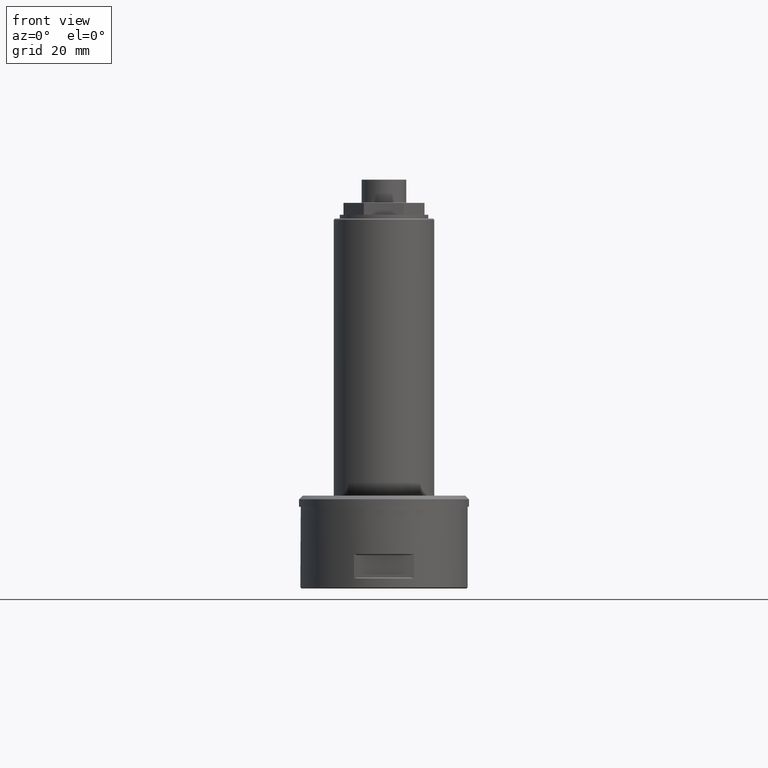
[diagram: clean part render]
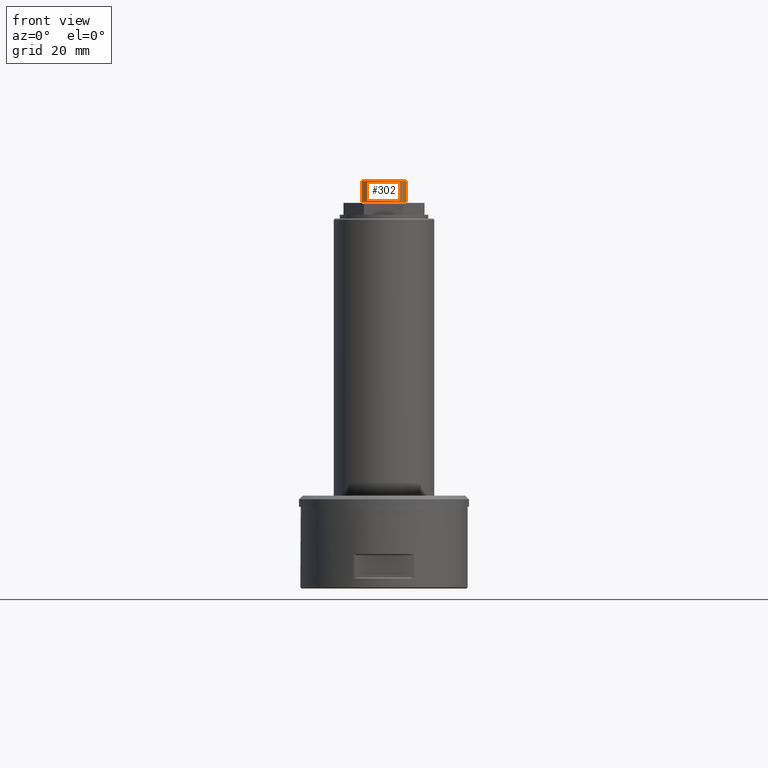
[diagram: same view with one face highlighted and labeled with its STEP entity id]
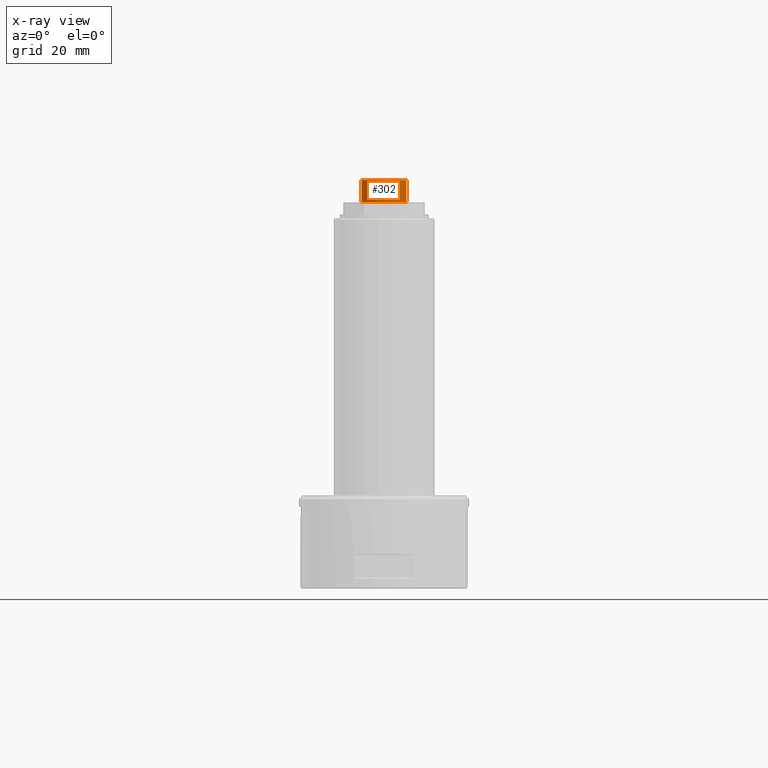
[diagram: x-ray of the same camera — body ghosted, the highlighted face saturated]
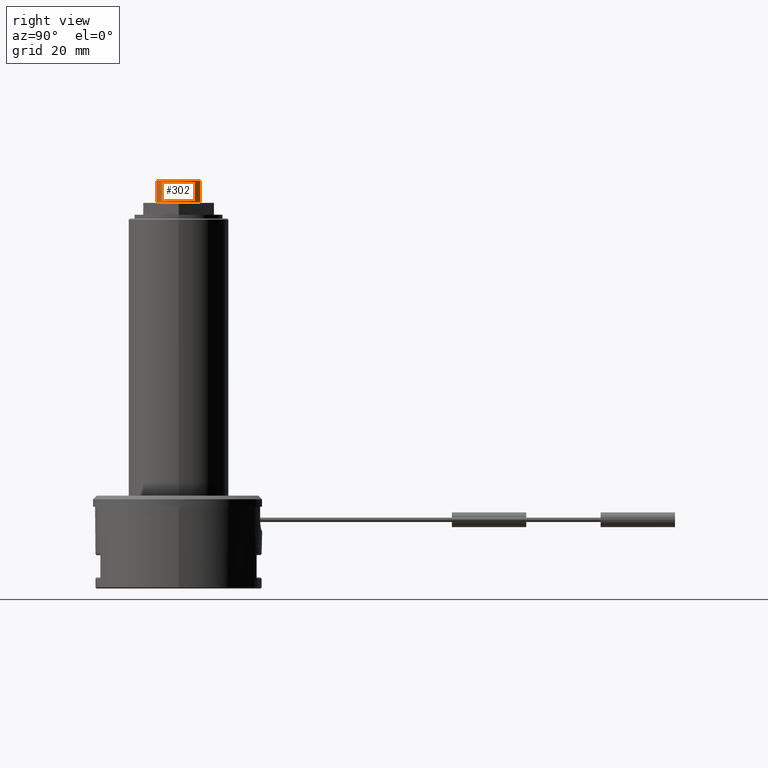
[diagram: same view with one face highlighted and labeled with its STEP entity id]
A machine part, front view. The second image highlights one B-rep face of the part: STEP entity #302.
The next image is the same camera in x-ray: the body ghosted, the highlighted face saturated — about 0% of this face is hidden behind the body in this view.
A second angle (right view) of the same face is appended — the face is thin or edge-on in the first view.
In plain terms, the highlighted cylindrical surface (bore or boss wall) has radius 6 mm, axis along (0, 0, 1).
Its self-contained STEP definition (entity closure, byte-faithful):
#302=ADVANCED_FACE('',(#396,#397),#364,.T.);
#364=CYLINDRICAL_SURFACE('',#1169,6.);
#396=FACE_BOUND('',#474,.T.);
#397=FACE_BOUND('',#475,.T.);
#474=EDGE_LOOP('',(#651));
#475=EDGE_LOOP('',(#652));
#651=ORIENTED_EDGE('',*,*,#988,.T.);
#652=ORIENTED_EDGE('',*,*,#989,.T.);
#875=VERTEX_POINT('',#1882);
#876=VERTEX_POINT('',#1884);
#988=EDGE_CURVE('',#875,#875,#1074,.T.);
#989=EDGE_CURVE('',#876,#876,#1075,.T.);
#1074=CIRCLE('',#1167,6.);
#1075=CIRCLE('',#1168,6.);
#1167=AXIS2_PLACEMENT_3D('',#1881,#1409,#1410);
#1168=AXIS2_PLACEMENT_3D('',#1883,#1411,#1412);
#1169=AXIS2_PLACEMENT_3D('',#1885,#1413,#1414);
#1409=DIRECTION('',(0.,0.,1.));
#1410=DIRECTION('',(-1.,0.,0.));
#1411=DIRECTION('',(0.,0.,-1.));
#1412=DIRECTION('',(-1.,0.,0.));
#1413=DIRECTION('',(0.,0.,1.));
#1414=DIRECTION('',(1.,0.,0.));
#1881=CARTESIAN_POINT('',(0.,0.,103.9));
#1882=CARTESIAN_POINT('',(-6.,0.,103.9));
#1883=CARTESIAN_POINT('',(0.,0.,109.8));
#1884=CARTESIAN_POINT('',(-6.,0.,109.8));
#1885=CARTESIAN_POINT('',(0.,0.,0.));